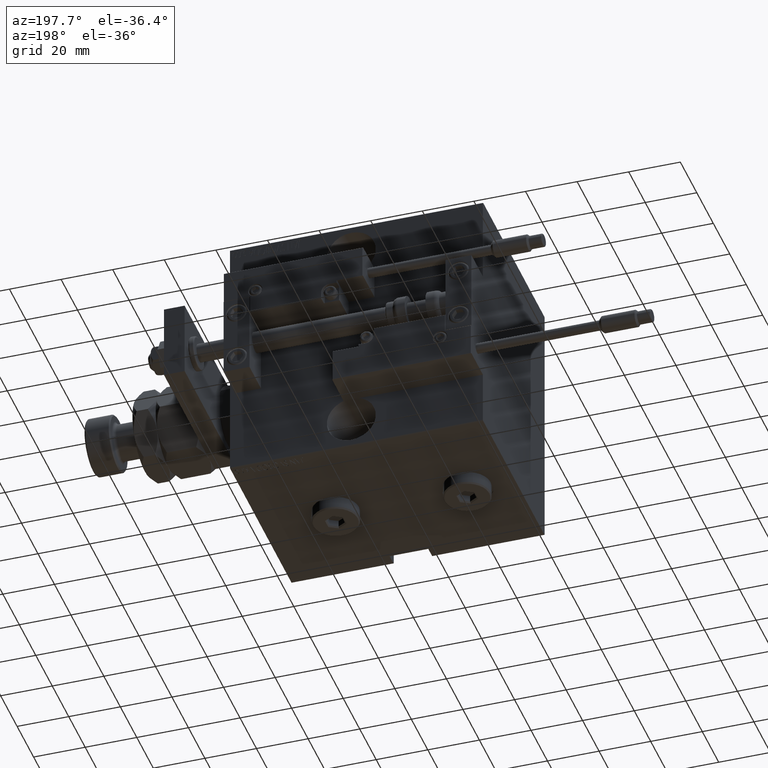
[diagram: clean part render]
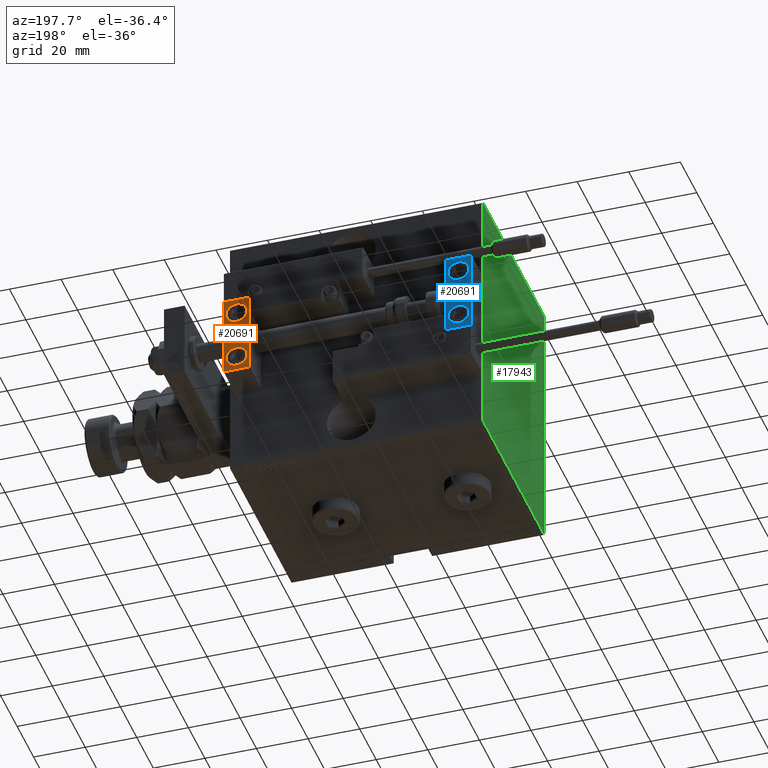
[diagram: same view with three faces highlighted in distinct colors, each labeled with its STEP entity id]
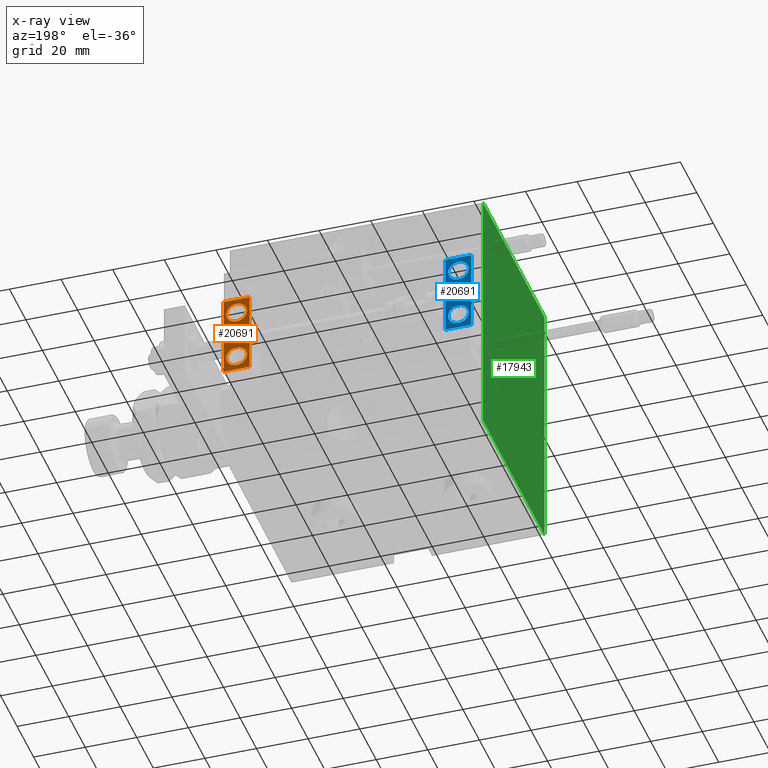
[diagram: x-ray of the same camera — body ghosted, the three highlighted faces saturated]
A machine part, auxiliary view with three faces highlighted in distinct colors.
The next image is the same camera in x-ray (body ghosted, the three faces saturated) — at least one of them is partly hidden behind the body in this view.
Their STEP definitions:

[orange] entity #20691 — the highlighted planar face has unit normal (0, 1, 0).
#207 = CARTESIAN_POINT ( 'NONE',  ( 5.000000000000000888, 6.999999999999999112, -6.000000000000000888 ) ) ;
#568 = VERTEX_POINT ( 'NONE', #49851 ) ;
#2635 = CIRCLE ( 'NONE', #7764, 4.000000000000000888 ) ;
#3039 = CARTESIAN_POINT ( 'NONE',  ( 0.000000000000000000, 7.000000000000000000, -16.00000000000000711 ) ) ;
#3985 = CARTESIAN_POINT ( 'NONE',  ( 10.00000000000000000, 7.000000000000000000, 15.99999999999999289 ) ) ;
#4286 = CARTESIAN_POINT ( 'NONE',  ( 10.00000000000000000, 7.000000000000000000, 15.99999999999999289 ) ) ;
#4571 = ORIENTED_EDGE ( 'NONE', *, *, #32094, .F. ) ;
#4790 = LINE ( 'NONE', #3985, #20917 ) ;
#5467 = CARTESIAN_POINT ( 'NONE',  ( 5.000000000000000888, 6.999999999999999112, -10.00000000000000178 ) ) ;
#5876 = DIRECTION ( 'NONE',  ( 0.000000000000000000, 0.000000000000000000, 1.000000000000000000 ) ) ;
#6126 = DIRECTION ( 'NONE',  ( 0.000000000000000000, 1.000000000000000000, -6.065466699219605527E-17 ) ) ;
#6153 = FACE_BOUND ( 'NONE', #24545, .T. ) ;
#6610 = VERTEX_POINT ( 'NONE', #207 ) ;
#7434 = DIRECTION ( 'NONE',  ( -1.000000000000000000, -0.000000000000000000, -0.000000000000000000 ) ) ;
#7709 = CARTESIAN_POINT ( 'NONE',  ( 5.000000000000000888, 7.000000000000000888, 10.00000000000000178 ) ) ;
#7764 = AXIS2_PLACEMENT_3D ( 'NONE', #5467, #29058, #41365 ) ;
#8290 = CIRCLE ( 'NONE', #27988, 4.000000000000000000 ) ;
#10186 = FACE_BOUND ( 'NONE', #25329, .T. ) ;
#10374 = ORIENTED_EDGE ( 'NONE', *, *, #22737, .F. ) ;
#11249 = AXIS2_PLACEMENT_3D ( 'NONE', #18458, #6126, #5876 ) ;
#12605 = CARTESIAN_POINT ( 'NONE',  ( 5.000000000000001776, 6.999999999999999112, -14.00000000000000178 ) ) ;
#12902 = EDGE_LOOP ( 'NONE', ( #10374, #4571, #32836, #31165 ) ) ;
#13223 = VERTEX_POINT ( 'NONE', #22020 ) ;
#13381 = VERTEX_POINT ( 'NONE', #12605 ) ;
#13413 = PLANE ( 'NONE',  #16523 ) ;
#16238 = EDGE_CURVE ( 'NONE', #13381, #6610, #2635, .T. ) ;
#16281 = DIRECTION ( 'NONE',  ( 1.848892746611746419E-32, -1.000000000000000000, 6.616381192988677562E-17 ) ) ;
#16523 = AXIS2_PLACEMENT_3D ( 'NONE', #46885, #41792, #29481 ) ;
#17037 = EDGE_CURVE ( 'NONE', #6610, #13381, #33466, .T. ) ;
#18376 = EDGE_CURVE ( 'NONE', #13223, #20105, #19739, .T. ) ;
#18458 = CARTESIAN_POINT ( 'NONE',  ( 5.000000000000000888, 6.999999999999999112, -10.00000000000000178 ) ) ;
#19261 = CARTESIAN_POINT ( 'NONE',  ( 5.000000000000000888, 7.000000000000000888, 14.00000000000000178 ) ) ;
#19739 = LINE ( 'NONE', #28056, #38663 ) ;
#20021 = AXIS2_PLACEMENT_3D ( 'NONE', #29685, #46024, #29425 ) ;
#20105 = VERTEX_POINT ( 'NONE', #3039 ) ;
#20691 = ADVANCED_FACE ( 'NONE', ( #46622, #10186, #6153 ), #13413, .T. ) ;
#20917 = VECTOR ( 'NONE', #21126, 1000.000000000000000 ) ;
#21126 = DIRECTION ( 'NONE',  ( 0.000000000000000000, 0.000000000000000000, -1.000000000000000000 ) ) ;
#21271 = ORIENTED_EDGE ( 'NONE', *, *, #17037, .F. ) ;
#22020 = CARTESIAN_POINT ( 'NONE',  ( 10.00000000000000000, 7.000000000000000000, -16.00000000000000711 ) ) ;
#22171 = EDGE_CURVE ( 'NONE', #34654, #24851, #39697, .T. ) ;
#22737 = EDGE_CURVE ( 'NONE', #52175, #20105, #45833, .T. ) ;
#23177 = EDGE_CURVE ( 'NONE', #568, #13223, #4790, .T. ) ;
#24053 = DIRECTION ( 'NONE',  ( 0.000000000000000000, 0.000000000000000000, 1.000000000000000000 ) ) ;
#24424 = CARTESIAN_POINT ( 'NONE',  ( 0.000000000000000000, 7.000000000000000000, 15.99999999999999289 ) ) ;
#24545 = EDGE_LOOP ( 'NONE', ( #32370, #27852 ) ) ;
#24665 = LINE ( 'NONE', #4286, #51887 ) ;
#24851 = VERTEX_POINT ( 'NONE', #37166 ) ;
#25329 = EDGE_LOOP ( 'NONE', ( #21271, #32369 ) ) ;
#27852 = ORIENTED_EDGE ( 'NONE', *, *, #32446, .T. ) ;
#27988 = AXIS2_PLACEMENT_3D ( 'NONE', #7709, #16281, #24053 ) ;
#28056 = CARTESIAN_POINT ( 'NONE',  ( 10.00000000000000000, 7.000000000000000000, -16.00000000000000711 ) ) ;
#29058 = DIRECTION ( 'NONE',  ( 0.000000000000000000, 1.000000000000000000, -6.065466699219605527E-17 ) ) ;
#29425 = DIRECTION ( 'NONE',  ( 0.000000000000000000, 0.000000000000000000, 1.000000000000000000 ) ) ;
#29481 = DIRECTION ( 'NONE',  ( 0.000000000000000000, -0.000000000000000000, 1.000000000000000000 ) ) ;
#29685 = CARTESIAN_POINT ( 'NONE',  ( 5.000000000000000888, 7.000000000000000888, 10.00000000000000178 ) ) ;
#29930 = DIRECTION ( 'NONE',  ( -1.000000000000000000, -0.000000000000000000, -0.000000000000000000 ) ) ;
#31165 = ORIENTED_EDGE ( 'NONE', *, *, #18376, .T. ) ;
#32094 = EDGE_CURVE ( 'NONE', #568, #52175, #24665, .T. ) ;
#32369 = ORIENTED_EDGE ( 'NONE', *, *, #16238, .F. ) ;
#32370 = ORIENTED_EDGE ( 'NONE', *, *, #22171, .T. ) ;
#32446 = EDGE_CURVE ( 'NONE', #24851, #34654, #8290, .T. ) ;
#32836 = ORIENTED_EDGE ( 'NONE', *, *, #23177, .T. ) ;
#33466 = CIRCLE ( 'NONE', #11249, 4.000000000000000888 ) ;
#34581 = VECTOR ( 'NONE', #41546, 1000.000000000000000 ) ;
#34654 = VERTEX_POINT ( 'NONE', #19261 ) ;
#37166 = CARTESIAN_POINT ( 'NONE',  ( 5.000000000000001776, 7.000000000000000888, 6.000000000000000888 ) ) ;
#38663 = VECTOR ( 'NONE', #7434, 1000.000000000000000 ) ;
#39697 = CIRCLE ( 'NONE', #20021, 4.000000000000000000 ) ;
#41365 = DIRECTION ( 'NONE',  ( 0.000000000000000000, 0.000000000000000000, 1.000000000000000000 ) ) ;
#41546 = DIRECTION ( 'NONE',  ( 0.000000000000000000, 0.000000000000000000, -1.000000000000000000 ) ) ;
#41792 = DIRECTION ( 'NONE',  ( -0.000000000000000000, 1.000000000000000000, 0.000000000000000000 ) ) ;
#45833 = LINE ( 'NONE', #24424, #34581 ) ;
#46024 = DIRECTION ( 'NONE',  ( 1.848892746611746419E-32, -1.000000000000000000, 6.616381192988677562E-17 ) ) ;
#46622 = FACE_OUTER_BOUND ( 'NONE', #12902, .T. ) ;
#46885 = CARTESIAN_POINT ( 'NONE',  ( 10.00000000000000000, 7.000000000000000000, 15.99999999999999289 ) ) ;
#49851 = CARTESIAN_POINT ( 'NONE',  ( 10.00000000000000000, 7.000000000000000000, 15.99999999999999289 ) ) ;
#51860 = CARTESIAN_POINT ( 'NONE',  ( 0.000000000000000000, 7.000000000000000000, 15.99999999999999289 ) ) ;
#51887 = VECTOR ( 'NONE', #29930, 1000.000000000000000 ) ;
#52175 = VERTEX_POINT ( 'NONE', #51860 ) ;

[blue] entity #20691 — the highlighted planar face has unit normal (-0, 1, -0).
#207 = CARTESIAN_POINT ( 'NONE',  ( 5.000000000000000888, 6.999999999999999112, -6.000000000000000888 ) ) ;
#568 = VERTEX_POINT ( 'NONE', #49851 ) ;
#2635 = CIRCLE ( 'NONE', #7764, 4.000000000000000888 ) ;
#3039 = CARTESIAN_POINT ( 'NONE',  ( 0.000000000000000000, 7.000000000000000000, -16.00000000000000711 ) ) ;
#3985 = CARTESIAN_POINT ( 'NONE',  ( 10.00000000000000000, 7.000000000000000000, 15.99999999999999289 ) ) ;
#4286 = CARTESIAN_POINT ( 'NONE',  ( 10.00000000000000000, 7.000000000000000000, 15.99999999999999289 ) ) ;
#4571 = ORIENTED_EDGE ( 'NONE', *, *, #32094, .F. ) ;
#4790 = LINE ( 'NONE', #3985, #20917 ) ;
#5467 = CARTESIAN_POINT ( 'NONE',  ( 5.000000000000000888, 6.999999999999999112, -10.00000000000000178 ) ) ;
#5876 = DIRECTION ( 'NONE',  ( 0.000000000000000000, 0.000000000000000000, 1.000000000000000000 ) ) ;
#6126 = DIRECTION ( 'NONE',  ( 0.000000000000000000, 1.000000000000000000, -6.065466699219605527E-17 ) ) ;
#6153 = FACE_BOUND ( 'NONE', #24545, .T. ) ;
#6610 = VERTEX_POINT ( 'NONE', #207 ) ;
#7434 = DIRECTION ( 'NONE',  ( -1.000000000000000000, -0.000000000000000000, -0.000000000000000000 ) ) ;
#7709 = CARTESIAN_POINT ( 'NONE',  ( 5.000000000000000888, 7.000000000000000888, 10.00000000000000178 ) ) ;
#7764 = AXIS2_PLACEMENT_3D ( 'NONE', #5467, #29058, #41365 ) ;
#8290 = CIRCLE ( 'NONE', #27988, 4.000000000000000000 ) ;
#10186 = FACE_BOUND ( 'NONE', #25329, .T. ) ;
#10374 = ORIENTED_EDGE ( 'NONE', *, *, #22737, .F. ) ;
#11249 = AXIS2_PLACEMENT_3D ( 'NONE', #18458, #6126, #5876 ) ;
#12605 = CARTESIAN_POINT ( 'NONE',  ( 5.000000000000001776, 6.999999999999999112, -14.00000000000000178 ) ) ;
#12902 = EDGE_LOOP ( 'NONE', ( #10374, #4571, #32836, #31165 ) ) ;
#13223 = VERTEX_POINT ( 'NONE', #22020 ) ;
#13381 = VERTEX_POINT ( 'NONE', #12605 ) ;
#13413 = PLANE ( 'NONE',  #16523 ) ;
#16238 = EDGE_CURVE ( 'NONE', #13381, #6610, #2635, .T. ) ;
#16281 = DIRECTION ( 'NONE',  ( 1.848892746611746419E-32, -1.000000000000000000, 6.616381192988677562E-17 ) ) ;
#16523 = AXIS2_PLACEMENT_3D ( 'NONE', #46885, #41792, #29481 ) ;
#17037 = EDGE_CURVE ( 'NONE', #6610, #13381, #33466, .T. ) ;
#18376 = EDGE_CURVE ( 'NONE', #13223, #20105, #19739, .T. ) ;
#18458 = CARTESIAN_POINT ( 'NONE',  ( 5.000000000000000888, 6.999999999999999112, -10.00000000000000178 ) ) ;
#19261 = CARTESIAN_POINT ( 'NONE',  ( 5.000000000000000888, 7.000000000000000888, 14.00000000000000178 ) ) ;
#19739 = LINE ( 'NONE', #28056, #38663 ) ;
#20021 = AXIS2_PLACEMENT_3D ( 'NONE', #29685, #46024, #29425 ) ;
#20105 = VERTEX_POINT ( 'NONE', #3039 ) ;
#20691 = ADVANCED_FACE ( 'NONE', ( #46622, #10186, #6153 ), #13413, .T. ) ;
#20917 = VECTOR ( 'NONE', #21126, 1000.000000000000000 ) ;
#21126 = DIRECTION ( 'NONE',  ( 0.000000000000000000, 0.000000000000000000, -1.000000000000000000 ) ) ;
#21271 = ORIENTED_EDGE ( 'NONE', *, *, #17037, .F. ) ;
#22020 = CARTESIAN_POINT ( 'NONE',  ( 10.00000000000000000, 7.000000000000000000, -16.00000000000000711 ) ) ;
#22171 = EDGE_CURVE ( 'NONE', #34654, #24851, #39697, .T. ) ;
#22737 = EDGE_CURVE ( 'NONE', #52175, #20105, #45833, .T. ) ;
#23177 = EDGE_CURVE ( 'NONE', #568, #13223, #4790, .T. ) ;
#24053 = DIRECTION ( 'NONE',  ( 0.000000000000000000, 0.000000000000000000, 1.000000000000000000 ) ) ;
#24424 = CARTESIAN_POINT ( 'NONE',  ( 0.000000000000000000, 7.000000000000000000, 15.99999999999999289 ) ) ;
#24545 = EDGE_LOOP ( 'NONE', ( #32370, #27852 ) ) ;
#24665 = LINE ( 'NONE', #4286, #51887 ) ;
#24851 = VERTEX_POINT ( 'NONE', #37166 ) ;
#25329 = EDGE_LOOP ( 'NONE', ( #21271, #32369 ) ) ;
#27852 = ORIENTED_EDGE ( 'NONE', *, *, #32446, .T. ) ;
#27988 = AXIS2_PLACEMENT_3D ( 'NONE', #7709, #16281, #24053 ) ;
#28056 = CARTESIAN_POINT ( 'NONE',  ( 10.00000000000000000, 7.000000000000000000, -16.00000000000000711 ) ) ;
#29058 = DIRECTION ( 'NONE',  ( 0.000000000000000000, 1.000000000000000000, -6.065466699219605527E-17 ) ) ;
#29425 = DIRECTION ( 'NONE',  ( 0.000000000000000000, 0.000000000000000000, 1.000000000000000000 ) ) ;
#29481 = DIRECTION ( 'NONE',  ( 0.000000000000000000, -0.000000000000000000, 1.000000000000000000 ) ) ;
#29685 = CARTESIAN_POINT ( 'NONE',  ( 5.000000000000000888, 7.000000000000000888, 10.00000000000000178 ) ) ;
#29930 = DIRECTION ( 'NONE',  ( -1.000000000000000000, -0.000000000000000000, -0.000000000000000000 ) ) ;
#31165 = ORIENTED_EDGE ( 'NONE', *, *, #18376, .T. ) ;
#32094 = EDGE_CURVE ( 'NONE', #568, #52175, #24665, .T. ) ;
#32369 = ORIENTED_EDGE ( 'NONE', *, *, #16238, .F. ) ;
#32370 = ORIENTED_EDGE ( 'NONE', *, *, #22171, .T. ) ;
#32446 = EDGE_CURVE ( 'NONE', #24851, #34654, #8290, .T. ) ;
#32836 = ORIENTED_EDGE ( 'NONE', *, *, #23177, .T. ) ;
#33466 = CIRCLE ( 'NONE', #11249, 4.000000000000000888 ) ;
#34581 = VECTOR ( 'NONE', #41546, 1000.000000000000000 ) ;
#34654 = VERTEX_POINT ( 'NONE', #19261 ) ;
#37166 = CARTESIAN_POINT ( 'NONE',  ( 5.000000000000001776, 7.000000000000000888, 6.000000000000000888 ) ) ;
#38663 = VECTOR ( 'NONE', #7434, 1000.000000000000000 ) ;
#39697 = CIRCLE ( 'NONE', #20021, 4.000000000000000000 ) ;
#41365 = DIRECTION ( 'NONE',  ( 0.000000000000000000, 0.000000000000000000, 1.000000000000000000 ) ) ;
#41546 = DIRECTION ( 'NONE',  ( 0.000000000000000000, 0.000000000000000000, -1.000000000000000000 ) ) ;
#41792 = DIRECTION ( 'NONE',  ( -0.000000000000000000, 1.000000000000000000, 0.000000000000000000 ) ) ;
#45833 = LINE ( 'NONE', #24424, #34581 ) ;
#46024 = DIRECTION ( 'NONE',  ( 1.848892746611746419E-32, -1.000000000000000000, 6.616381192988677562E-17 ) ) ;
#46622 = FACE_OUTER_BOUND ( 'NONE', #12902, .T. ) ;
#46885 = CARTESIAN_POINT ( 'NONE',  ( 10.00000000000000000, 7.000000000000000000, 15.99999999999999289 ) ) ;
#49851 = CARTESIAN_POINT ( 'NONE',  ( 10.00000000000000000, 7.000000000000000000, 15.99999999999999289 ) ) ;
#51860 = CARTESIAN_POINT ( 'NONE',  ( 0.000000000000000000, 7.000000000000000000, 15.99999999999999289 ) ) ;
#51887 = VECTOR ( 'NONE', #29930, 1000.000000000000000 ) ;
#52175 = VERTEX_POINT ( 'NONE', #51860 ) ;

[green] entity #17943 — the highlighted planar face has unit normal (-1, 0, 0).
#551 = VERTEX_POINT ( 'NONE', #41288 ) ;
#733 = EDGE_CURVE ( 'NONE', #38123, #14959, #27599, .T. ) ;
#2602 = DIRECTION ( 'NONE',  ( -0.000000000000000000, 0.7071067811865556774, 0.7071067811865392461 ) ) ;
#3021 = CARTESIAN_POINT ( 'NONE',  ( 98.00000000000000000, -37.19999999999996732, 50.00000000000000000 ) ) ;
#4988 = LINE ( 'NONE', #26158, #25823 ) ;
#6631 = LINE ( 'NONE', #39311, #25792 ) ;
#7115 = VECTOR ( 'NONE', #30221, 1000.000000000000000 ) ;
#7997 = VECTOR ( 'NONE', #43929, 1000.000000000000114 ) ;
#9365 = CARTESIAN_POINT ( 'NONE',  ( 98.00000000000000000, 43.60000000000042775, 43.59999999999941878 ) ) ;
#10122 = ORIENTED_EDGE ( 'NONE', *, *, #16214, .T. ) ;
#11584 = ORIENTED_EDGE ( 'NONE', *, *, #20440, .T. ) ;
#11631 = ORIENTED_EDGE ( 'NONE', *, *, #17336, .T. ) ;
#12298 = CARTESIAN_POINT ( 'NONE',  ( 98.00000000000000000, -37.50000000000000000, 49.69999999999998153 ) ) ;
#12603 = DIRECTION ( 'NONE',  ( -0.000000000000000000, -0.7071067811865392461, 0.7071067811865556774 ) ) ;
#13498 = ORIENTED_EDGE ( 'NONE', *, *, #25479, .T. ) ;
#14400 = EDGE_LOOP ( 'NONE', ( #23483, #11631, #13498, #29137, #11584, #41548, #10122, #26678 ) ) ;
#14959 = VERTEX_POINT ( 'NONE', #26729 ) ;
#16214 = EDGE_CURVE ( 'NONE', #22050, #38123, #32537, .T. ) ;
#16262 = CARTESIAN_POINT ( 'NONE',  ( 98.00000000000000000, -43.59999999999956088, 43.60000000000057696 ) ) ;
#16953 = DIRECTION ( 'NONE',  ( 0.000000000000000000, -1.387778780781445182E-16, 1.000000000000000000 ) ) ;
#17336 = EDGE_CURVE ( 'NONE', #35248, #34302, #6631, .T. ) ;
#17639 = EDGE_CURVE ( 'NONE', #14959, #35248, #4988, .T. ) ;
#17943 = ADVANCED_FACE ( 'NONE', ( #38070 ), #18503, .T. ) ;
#17976 = DIRECTION ( 'NONE',  ( 1.000000000000000000, 0.000000000000000000, 0.000000000000000000 ) ) ;
#18503 = PLANE ( 'NONE',  #36938 ) ;
#19485 = DIRECTION ( 'NONE',  ( 0.000000000000000000, -0.7071067811865556774, -0.7071067811865392461 ) ) ;
#20440 = EDGE_CURVE ( 'NONE', #33809, #35355, #42552, .T. ) ;
#21325 = DIRECTION ( 'NONE',  ( 0.000000000000000000, 1.000000000000000000, 9.251858538542970348E-17 ) ) ;
#21498 = VECTOR ( 'NONE', #12603, 1000.000000000000114 ) ;
#21720 = VECTOR ( 'NONE', #16953, 1000.000000000000000 ) ;
#22050 = VERTEX_POINT ( 'NONE', #12298 ) ;
#22524 = CARTESIAN_POINT ( 'NONE',  ( 98.00000000000000000, 0.000000000000000000, 0.000000000000000000 ) ) ;
#23457 = DIRECTION ( 'NONE',  ( 0.000000000000000000, 0.000000000000000000, -1.000000000000000000 ) ) ;
#23483 = ORIENTED_EDGE ( 'NONE', *, *, #17639, .T. ) ;
#25261 = LINE ( 'NONE', #42390, #21720 ) ;
#25479 = EDGE_CURVE ( 'NONE', #34302, #551, #25261, .T. ) ;
#25684 = CARTESIAN_POINT ( 'NONE',  ( 98.00000000000000000, 37.49999999999999289, 50.00000000000001421 ) ) ;
#25792 = VECTOR ( 'NONE', #2602, 1000.000000000000114 ) ;
#25823 = VECTOR ( 'NONE', #21325, 1000.000000000000000 ) ;
#26158 = CARTESIAN_POINT ( 'NONE',  ( 98.00000000000000000, -37.50000000000000000, -50.00000000000001421 ) ) ;
#26678 = ORIENTED_EDGE ( 'NONE', *, *, #733, .T. ) ;
#26729 = CARTESIAN_POINT ( 'NONE',  ( 98.00000000000000000, -37.19999999999997442, -50.00000000000001421 ) ) ;
#27081 = DIRECTION ( 'NONE',  ( 0.000000000000000000, 0.000000000000000000, -1.000000000000000000 ) ) ;
#27599 = LINE ( 'NONE', #51718, #7997 ) ;
#28300 = VECTOR ( 'NONE', #23457, 1000.000000000000000 ) ;
#29137 = ORIENTED_EDGE ( 'NONE', *, *, #38871, .T. ) ;
#30221 = DIRECTION ( 'NONE',  ( 0.000000000000000000, -1.000000000000000000, -1.850371707708594563E-16 ) ) ;
#32537 = LINE ( 'NONE', #36817, #28300 ) ;
#33809 = VERTEX_POINT ( 'NONE', #36107 ) ;
#34302 = VERTEX_POINT ( 'NONE', #43701 ) ;
#34582 = VECTOR ( 'NONE', #19485, 1000.000000000000114 ) ;
#35248 = VERTEX_POINT ( 'NONE', #42693 ) ;
#35355 = VERTEX_POINT ( 'NONE', #3021 ) ;
#36107 = CARTESIAN_POINT ( 'NONE',  ( 98.00000000000000000, 37.19999999999998153, 50.00000000000001421 ) ) ;
#36817 = CARTESIAN_POINT ( 'NONE',  ( 98.00000000000000000, -37.50000000000000000, 50.00000000000000000 ) ) ;
#36938 = AXIS2_PLACEMENT_3D ( 'NONE', #22524, #17976, #27081 ) ;
#37500 = LINE ( 'NONE', #9365, #21498 ) ;
#38070 = FACE_OUTER_BOUND ( 'NONE', #14400, .T. ) ;
#38123 = VERTEX_POINT ( 'NONE', #51467 ) ;
#38871 = EDGE_CURVE ( 'NONE', #551, #33809, #37500, .T. ) ;
#39311 = CARTESIAN_POINT ( 'NONE',  ( 98.00000000000000000, 43.59999999999956088, -43.60000000000057696 ) ) ;
#41288 = CARTESIAN_POINT ( 'NONE',  ( 98.00000000000000000, 37.49999999999999289, 49.70000000000000284 ) ) ;
#41548 = ORIENTED_EDGE ( 'NONE', *, *, #48941, .T. ) ;
#42390 = CARTESIAN_POINT ( 'NONE',  ( 98.00000000000000000, 37.50000000000000711, -50.00000000000000711 ) ) ;
#42552 = LINE ( 'NONE', #25684, #7115 ) ;
#42693 = CARTESIAN_POINT ( 'NONE',  ( 98.00000000000000000, 37.19999999999998863, -50.00000000000000711 ) ) ;
#43701 = CARTESIAN_POINT ( 'NONE',  ( 98.00000000000000000, 37.50000000000000711, -49.70000000000000284 ) ) ;
#43929 = DIRECTION ( 'NONE',  ( -0.000000000000000000, 0.7071067811865474617, -0.7071067811865474617 ) ) ;
#44129 = LINE ( 'NONE', #16262, #34582 ) ;
#48941 = EDGE_CURVE ( 'NONE', #35355, #22050, #44129, .T. ) ;
#51467 = CARTESIAN_POINT ( 'NONE',  ( 98.00000000000000000, -37.50000000000000000, -49.69999999999999574 ) ) ;
#51718 = CARTESIAN_POINT ( 'NONE',  ( 98.00000000000000000, -43.59999999999999432, -43.59999999999999432 ) ) ;